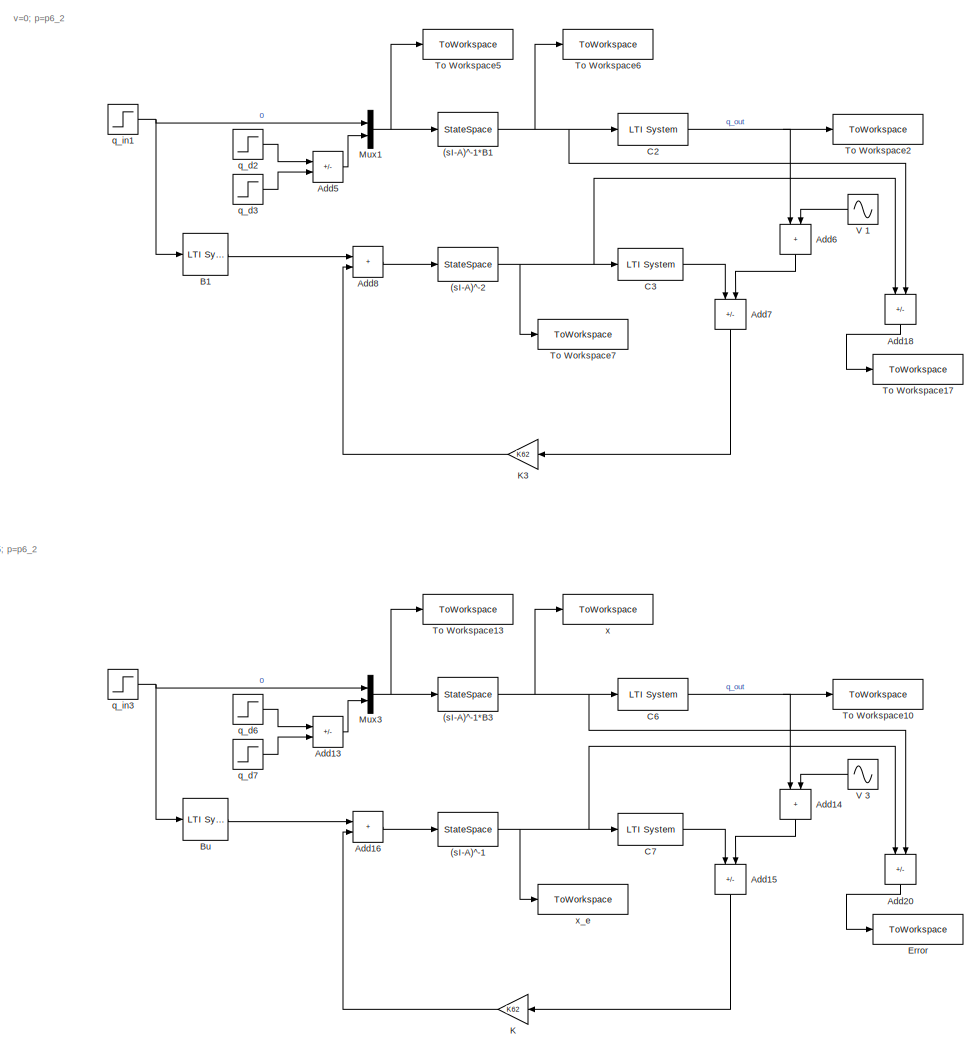
[diagram: root canvas - part 1/2, right side, full height]
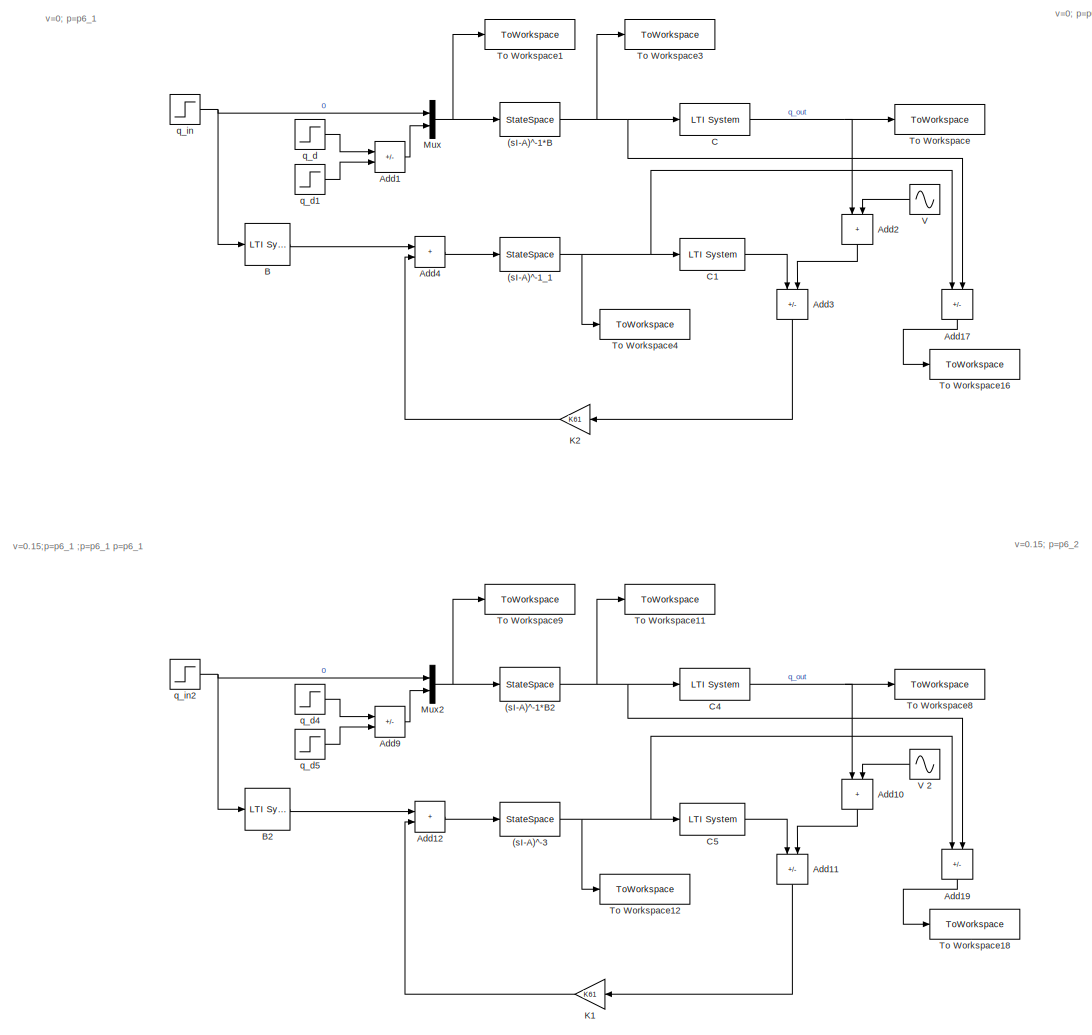
[diagram: root canvas - part 2/2, left side, full height]
MODEL slx_ede058a52afc
KIND model
CONFIG AbsTol = auto
CONFIG EnableMultiTasking = off
CONFIG FixedStep = auto
CONFIG MaxStep = auto
CONFIG MinStep = auto
CONFIG RelTol = 1e-3
CONFIG SampleTimeConstraint = Unconstrained
CONFIG SolverName = VariableStepAuto
CONFIG StartTime = 0.0
CONFIG StopTime = 20.0
BLOCK [StateSpace] (sI-A)^-1
  A = matA1
  B = eye(3)
  C = eye(3)
  D = [[0 0 0];[0 0 0];[0 0 0]]
  InitialCondition = 0
BLOCK [StateSpace] (sI-A)^-1*B
  A = matA1
  B = matB1
  C = eye(3)
  D = [[0 0];[0 0];[0 0]]
  InitialCondition = 0
BLOCK [StateSpace] (sI-A)^-1*B1
  A = matA1
  B = matB1
  C = eye(3)
  D = [[0 0];[0 0];[0 0]]
  InitialCondition = 0
BLOCK [StateSpace] (sI-A)^-1*B2
  A = matA1
  B = matB1
  C = eye(3)
  D = [[0 0];[0 0];[0 0]]
  InitialCondition = 0
BLOCK [StateSpace] (sI-A)^-1*B3
  A = matA1
  B = matB1
  C = eye(3)
  D = [[0 0];[0 0];[0 0]]
  InitialCondition = 0
BLOCK [StateSpace] (sI-A)^-1_1
  A = matA1
  B = eye(3)
  C = eye(3)
  D = [[0 0 0];[0 0 0];[0 0 0]]
  InitialCondition = 0
BLOCK [StateSpace] (sI-A)^-2
  A = matA1
  B = eye(3)
  C = eye(3)
  D = [[0 0 0];[0 0 0];[0 0 0]]
  InitialCondition = 0
BLOCK [StateSpace] (sI-A)^-3
  A = matA1
  B = eye(3)
  C = eye(3)
  D = [[0 0 0];[0 0 0];[0 0 0]]
  InitialCondition = 0
BLOCK [Sum] Add1
  IconShape = rectangular
  Inputs = +-
BLOCK [Sum] Add10
  IconShape = rectangular
  NameLocation = left
BLOCK [Sum] Add11
  IconShape = rectangular
  Inputs = -+
  NameLocation = left
BLOCK [Sum] Add12
  IconShape = rectangular
BLOCK [Sum] Add13
  IconShape = rectangular
  Inputs = +-
BLOCK [Sum] Add14
  IconShape = rectangular
  NameLocation = left
BLOCK [Sum] Add15
  IconShape = rectangular
  Inputs = -+
  NameLocation = left
BLOCK [Sum] Add16
  IconShape = rectangular
BLOCK [Sum] Add17
  IconShape = rectangular
  Inputs = -+
  NameLocation = left
BLOCK [Sum] Add18
  IconShape = rectangular
  Inputs = -+
  NameLocation = left
BLOCK [Sum] Add19
  IconShape = rectangular
  Inputs = -+
  NameLocation = left
BLOCK [Sum] Add2
  IconShape = rectangular
  NameLocation = left
BLOCK [Sum] Add20
  IconShape = rectangular
  Inputs = -+
  NameLocation = left
BLOCK [Sum] Add3
  IconShape = rectangular
  Inputs = -+
  NameLocation = left
BLOCK [Sum] Add4
  IconShape = rectangular
BLOCK [Sum] Add5
  IconShape = rectangular
  Inputs = +-
BLOCK [Sum] Add6
  IconShape = rectangular
  NameLocation = left
BLOCK [Sum] Add7
  IconShape = rectangular
  Inputs = -+
  NameLocation = left
BLOCK [Sum] Add8
  IconShape = rectangular
BLOCK [Sum] Add9
  IconShape = rectangular
  Inputs = +-
BLOCK [Reference] B  REF=cstblocks/LTI System
  SourceBlock = cstblocks/LTI System
  SourceType = LTI Block
BLOCK [Reference] B1  REF=cstblocks/LTI System
  SourceBlock = cstblocks/LTI System
  SourceType = LTI Block
BLOCK [Reference] B2  REF=cstblocks/LTI System
  SourceBlock = cstblocks/LTI System
  SourceType = LTI Block
BLOCK [Reference] Bu  REF=cstblocks/LTI System
  SourceBlock = cstblocks/LTI System
  SourceType = LTI Block
BLOCK [Reference] C  REF=cstblocks/LTI System
  SourceBlock = cstblocks/LTI System
  SourceType = LTI Block
BLOCK [Reference] C1  REF=cstblocks/LTI System
  SourceBlock = cstblocks/LTI System
  SourceType = LTI Block
BLOCK [Reference] C2  REF=cstblocks/LTI System
  SourceBlock = cstblocks/LTI System
  SourceType = LTI Block
BLOCK [Reference] C3  REF=cstblocks/LTI System
  SourceBlock = cstblocks/LTI System
  SourceType = LTI Block
BLOCK [Reference] C4  REF=cstblocks/LTI System
  SourceBlock = cstblocks/LTI System
  SourceType = LTI Block
BLOCK [Reference] C5  REF=cstblocks/LTI System
  SourceBlock = cstblocks/LTI System
  SourceType = LTI Block
BLOCK [Reference] C6  REF=cstblocks/LTI System
  SourceBlock = cstblocks/LTI System
  SourceType = LTI Block
BLOCK [Reference] C7  REF=cstblocks/LTI System
  SourceBlock = cstblocks/LTI System
  SourceType = LTI Block
BLOCK [ToWorkspace] Error
  FixptAsFi = on
  MaxDataPoints = inf
  SampleTime = -1
  SaveFormat = Timeseries
  VariableName = e72
BLOCK [Gain] K
  Gain = K62
  Multiplication = Matrix(u*K)
BLOCK [Gain] K1
  Gain = K61
  Multiplication = Matrix(u*K)
BLOCK [Gain] K2
  Gain = K61
  Multiplication = Matrix(u*K)
BLOCK [Gain] K3
  Gain = K62
  Multiplication = Matrix(u*K)
BLOCK [Mux] Mux
  DisplayOption = bar
  Inputs = 2
BLOCK [Mux] Mux1
  DisplayOption = bar
  Inputs = 2
BLOCK [Mux] Mux2
  DisplayOption = bar
  Inputs = 2
BLOCK [Mux] Mux3
  DisplayOption = bar
  Inputs = 2
BLOCK [ToWorkspace] To Workspace
  FixptAsFi = on
  MaxDataPoints = inf
  SampleTime = -1
  SaveFormat = Timeseries
  VariableName = y61
BLOCK [ToWorkspace] To Workspace1
  FixptAsFi = on
  MaxDataPoints = inf
  SampleTime = -1
  SaveFormat = Timeseries
  VariableName = u61
BLOCK [ToWorkspace] To Workspace10
  FixptAsFi = on
  MaxDataPoints = inf
  SampleTime = -1
  SaveFormat = Timeseries
  VariableName = y72
BLOCK [ToWorkspace] To Workspace11
  FixptAsFi = on
  MaxDataPoints = inf
  SampleTime = -1
  SaveFormat = Timeseries
  VariableName = x71
BLOCK [ToWorkspace] To Workspace12
  FixptAsFi = on
  MaxDataPoints = inf
  SampleTime = -1
  SaveFormat = Timeseries
  VariableName = xe71
BLOCK [ToWorkspace] To Workspace13
  FixptAsFi = on
  MaxDataPoints = inf
  SampleTime = -1
  SaveFormat = Timeseries
  VariableName = u72
BLOCK [ToWorkspace] To Workspace16
  FixptAsFi = on
  MaxDataPoints = inf
  SampleTime = -1
  SaveFormat = Timeseries
  VariableName = e61
BLOCK [ToWorkspace] To Workspace17
  FixptAsFi = on
  MaxDataPoints = inf
  SampleTime = -1
  SaveFormat = Timeseries
  VariableName = e62
BLOCK [ToWorkspace] To Workspace18
  FixptAsFi = on
  MaxDataPoints = inf
  SampleTime = -1
  SaveFormat = Timeseries
  VariableName = e71
BLOCK [ToWorkspace] To Workspace2
  FixptAsFi = on
  MaxDataPoints = inf
  SampleTime = -1
  SaveFormat = Timeseries
  VariableName = y62
BLOCK [ToWorkspace] To Workspace3
  FixptAsFi = on
  MaxDataPoints = inf
  SampleTime = -1
  SaveFormat = Timeseries
  VariableName = x61
BLOCK [ToWorkspace] To Workspace4
  FixptAsFi = on
  MaxDataPoints = inf
  SampleTime = -1
  SaveFormat = Timeseries
  VariableName = xe61
BLOCK [ToWorkspace] To Workspace5
  FixptAsFi = on
  MaxDataPoints = inf
  SampleTime = -1
  SaveFormat = Timeseries
  VariableName = u62
BLOCK [ToWorkspace] To Workspace6
  FixptAsFi = on
  MaxDataPoints = inf
  SampleTime = -1
  SaveFormat = Timeseries
  VariableName = x62
BLOCK [ToWorkspace] To Workspace7
  FixptAsFi = on
  MaxDataPoints = inf
  SampleTime = -1
  SaveFormat = Timeseries
  VariableName = xe62
BLOCK [ToWorkspace] To Workspace8
  FixptAsFi = on
  MaxDataPoints = inf
  SampleTime = -1
  SaveFormat = Timeseries
  VariableName = y71
BLOCK [ToWorkspace] To Workspace9
  FixptAsFi = on
  MaxDataPoints = inf
  SampleTime = -1
  SaveFormat = Timeseries
  VariableName = u71
BLOCK [Sin] V 
  Amplitude = V6
  Frequency = 10
  SampleTime = 0
BLOCK [Sin] V 1
  Amplitude = V6
  Frequency = 10
  SampleTime = 0
BLOCK [Sin] V 2
  Amplitude = V7
  Frequency = 10
  SampleTime = 0
BLOCK [Sin] V 3
  Amplitude = V7
  Frequency = 10
  SampleTime = 0
BLOCK [Step] q_d
  After = 12
  SampleTime = 0
  Time = 0
BLOCK [Step] q_d1
  After = 12
  SampleTime = 0
  Time = 2.3
BLOCK [Step] q_d2
  After = 12
  SampleTime = 0
  Time = 0
BLOCK [Step] q_d3
  After = 12
  SampleTime = 0
  Time = 2.3
BLOCK [Step] q_d4
  After = 12
  SampleTime = 0
  Time = 0
BLOCK [Step] q_d5
  After = 12
  SampleTime = 0
  Time = 2.3
BLOCK [Step] q_d6
  After = 12
  SampleTime = 0
  Time = 0
BLOCK [Step] q_d7
  After = 12
  SampleTime = 0
  Time = 2.3
BLOCK [Step] q_in
  After = 0
  SampleTime = 0
  Time = 0
BLOCK [Step] q_in1
  After = 0
  SampleTime = 0
  Time = 0
BLOCK [Step] q_in2
  After = 0
  SampleTime = 0
  Time = 0
BLOCK [Step] q_in3
  After = 0
  SampleTime = 0
  Time = 0
BLOCK [ToWorkspace] x
  FixptAsFi = on
  MaxDataPoints = inf
  SampleTime = -1
  SaveFormat = Timeseries
  VariableName = x72
BLOCK [ToWorkspace] x_e
  FixptAsFi = on
  MaxDataPoints = inf
  SampleTime = -1
  SaveFormat = Timeseries
  VariableName = xe72
ANNOTATION (root): v=0.15; p=p6_2
ANNOTATION (root): v=0.15;p=p6_1 ;p=p6_1 p=p6_1
ANNOTATION (root): v=0; p=p6_1
ANNOTATION (root): v=0; p=p6_2
NET (sI-A)^-1*B1:1 -> Add18:2, C2:1, To Workspace6:1
NET (sI-A)^-1*B2:1 -> Add19:2, C4:1, To Workspace11:1
NET (sI-A)^-1*B3:1 -> Add20:2, C6:1, x:1
NET (sI-A)^-1*B:1 -> Add17:2, C:1, To Workspace3:1
NET (sI-A)^-1:1 -> Add20:1, C7:1, x_e:1
NET (sI-A)^-1_1:1 -> Add17:1, C1:1, To Workspace4:1
NET (sI-A)^-2:1 -> Add18:1, C3:1, To Workspace7:1
NET (sI-A)^-3:1 -> Add19:1, C5:1, To Workspace12:1
LINE Add10:1 -> Add11:2
LINE Add11:1 -> K1:1
LINE Add12:1 -> (sI-A)^-3:1
LINE Add13:1 -> Mux3:2
LINE Add14:1 -> Add15:2
LINE Add15:1 -> K:1
LINE Add16:1 -> (sI-A)^-1:1
LINE Add17:1 -> To Workspace16:1
LINE Add18:1 -> To Workspace17:1
LINE Add19:1 -> To Workspace18:1
LINE Add1:1 -> Mux:2
LINE Add20:1 -> Error:1
LINE Add2:1 -> Add3:2
LINE Add3:1 -> K2:1
LINE Add4:1 -> (sI-A)^-1_1:1
LINE Add5:1 -> Mux1:2
LINE Add6:1 -> Add7:2
LINE Add7:1 -> K3:1
LINE Add8:1 -> (sI-A)^-2:1
LINE Add9:1 -> Mux2:2
LINE B1:1 -> Add8:1
LINE B2:1 -> Add12:1
LINE B:1 -> Add4:1
LINE Bu:1 -> Add16:1
LINE C1:1 -> Add3:1
NET C2:1 -> Add6:1, To Workspace2:1
LINE C3:1 -> Add7:1
NET C4:1 -> Add10:1, To Workspace8:1
LINE C5:1 -> Add11:1
NET C6:1 -> Add14:1, To Workspace10:1
LINE C7:1 -> Add15:1
NET C:1 -> Add2:1, To Workspace:1
LINE K1:1 -> Add12:2
LINE K2:1 -> Add4:2
LINE K3:1 -> Add8:2
LINE K:1 -> Add16:2
NET Mux1:1 -> (sI-A)^-1*B1:1, To Workspace5:1
NET Mux2:1 -> (sI-A)^-1*B2:1, To Workspace9:1
NET Mux3:1 -> (sI-A)^-1*B3:1, To Workspace13:1
NET Mux:1 -> (sI-A)^-1*B:1, To Workspace1:1
LINE V 1:1 -> Add6:2
LINE V 2:1 -> Add10:2
LINE V 3:1 -> Add14:2
LINE V :1 -> Add2:2
LINE q_d1:1 -> Add1:2
LINE q_d2:1 -> Add5:1
LINE q_d3:1 -> Add5:2
LINE q_d4:1 -> Add9:1
LINE q_d5:1 -> Add9:2
LINE q_d6:1 -> Add13:1
LINE q_d7:1 -> Add13:2
LINE q_d:1 -> Add1:1
NET q_in1:1 -> B1:1, Mux1:1
NET q_in2:1 -> B2:1, Mux2:1
NET q_in3:1 -> Bu:1, Mux3:1
NET q_in:1 -> B:1, Mux:1
note: NET lines group one-source signal fan-out (src -> all destinations, sorted); 1:1 wires keep LINE
